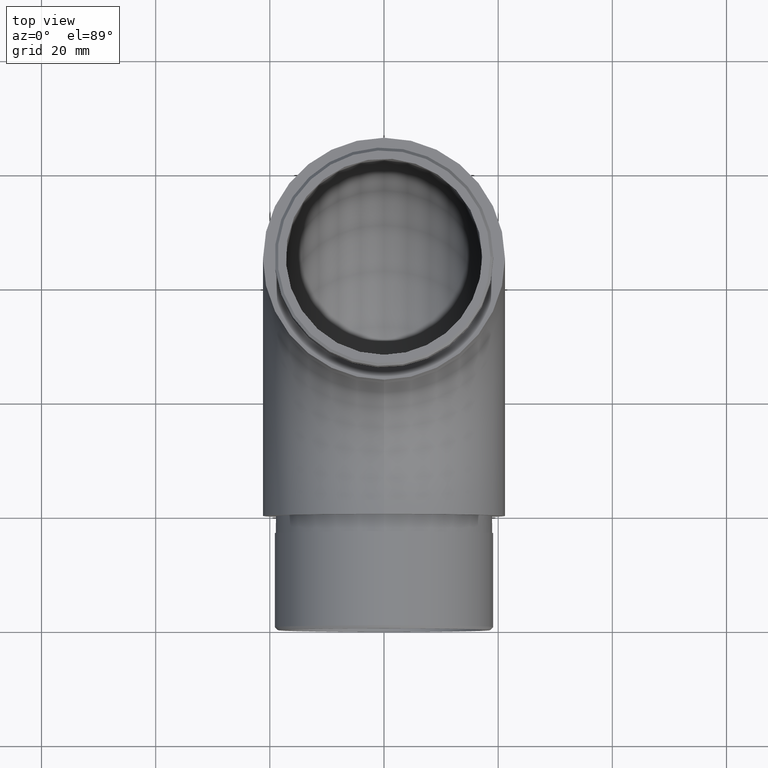
[diagram: clean part render]
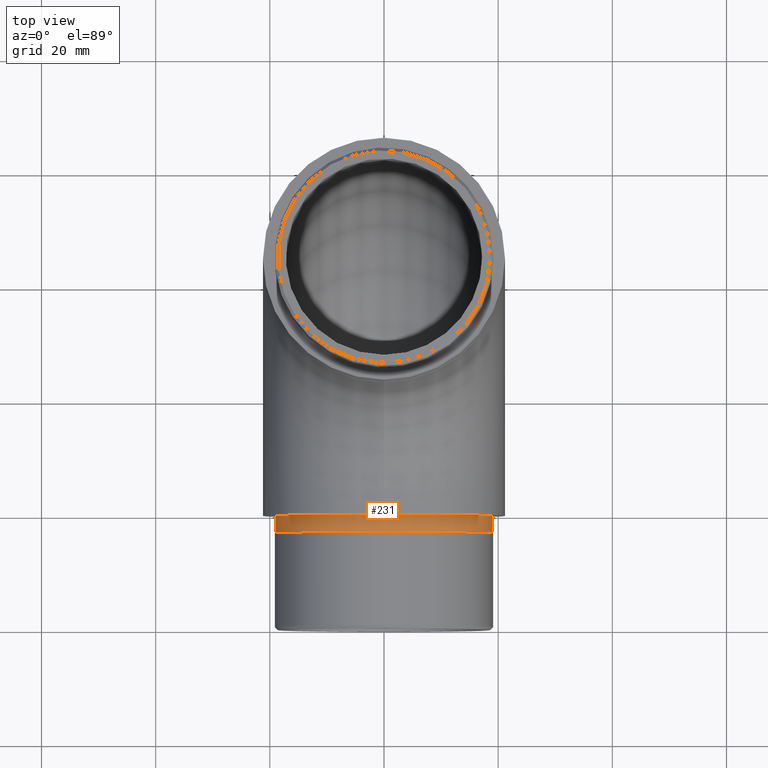
[diagram: same view with one face highlighted and labeled with its STEP entity id]
A machine part, top view. The second image highlights one B-rep face of the part: STEP entity #231.
In plain terms, the highlighted cylindrical surface (bore or boss wall) has radius 18.95 mm, axis along (-0, 1, -0).
Its self-contained STEP definition (entity closure, byte-faithful):
#231 = ADVANCED_FACE ( 'NONE', ( #1493, #11061 ), #10782, .T. ) ;
#266 = EDGE_CURVE ( 'NONE', #10323, #10323, #6127, .T. ) ;
#584 = DIRECTION ( 'NONE',  ( 0.0000000000000000000, -1.000000000000000000, 0.0000000000000000000 ) ) ;
#731 = AXIS2_PLACEMENT_3D ( 'NONE', #5198, #584, #7981 ) ;
#865 = CIRCLE ( 'NONE', #2717, 18.95000000000000300 ) ;
#984 = CARTESIAN_POINT ( 'NONE',  ( 0.0000000000000000000, -3.000000000000000000, 2.250000000000005300 ) ) ;
#1044 = ORIENTED_EDGE ( 'NONE', *, *, #266, .F. ) ;
#1493 = FACE_OUTER_BOUND ( 'NONE', #9995, .T. ) ;
#2717 = AXIS2_PLACEMENT_3D ( 'NONE', #7949, #9721, #6863 ) ;
#3397 = DIRECTION ( 'NONE',  ( 0.0000000000000000000, 0.0000000000000000000, 1.000000000000000000 ) ) ;
#3550 = ORIENTED_EDGE ( 'NONE', *, *, #3872, .T. ) ;
#3872 = EDGE_CURVE ( 'NONE', #9013, #9013, #865, .T. ) ;
#5198 = CARTESIAN_POINT ( 'NONE',  ( 0.0000000000000000000, -3.000000000000000000, 21.20000000000000300 ) ) ;
#5609 = CARTESIAN_POINT ( 'NONE',  ( 0.0000000000000000000, 0.0000000000000000000, 40.15000000000000600 ) ) ;
#6127 = CIRCLE ( 'NONE', #731, 18.94999999999999900 ) ;
#6138 = CARTESIAN_POINT ( 'NONE',  ( 0.0000000000000000000, -3.000000000000000000, 21.20000000000000300 ) ) ;
#6863 = DIRECTION ( 'NONE',  ( 0.0000000000000000000, 0.0000000000000000000, 1.000000000000000000 ) ) ;
#7940 = DIRECTION ( 'NONE',  ( -0.0000000000000000000, 1.000000000000000000, -0.0000000000000000000 ) ) ;
#7949 = CARTESIAN_POINT ( 'NONE',  ( 0.0000000000000000000, 0.0000000000000000000, 21.20000000000000300 ) ) ;
#7981 = DIRECTION ( 'NONE',  ( 0.0000000000000000000, 0.0000000000000000000, -1.000000000000000000 ) ) ;
#8966 = AXIS2_PLACEMENT_3D ( 'NONE', #6138, #7940, #3397 ) ;
#9013 = VERTEX_POINT ( 'NONE', #5609 ) ;
#9566 = EDGE_LOOP ( 'NONE', ( #3550 ) ) ;
#9721 = DIRECTION ( 'NONE',  ( -0.0000000000000000000, -1.000000000000000000, -0.0000000000000000000 ) ) ;
#9995 = EDGE_LOOP ( 'NONE', ( #1044 ) ) ;
#10323 = VERTEX_POINT ( 'NONE', #984 ) ;
#10782 = CYLINDRICAL_SURFACE ( 'NONE', #8966, 18.95000000000000300 ) ;
#11061 = FACE_OUTER_BOUND ( 'NONE', #9566, .T. ) ;